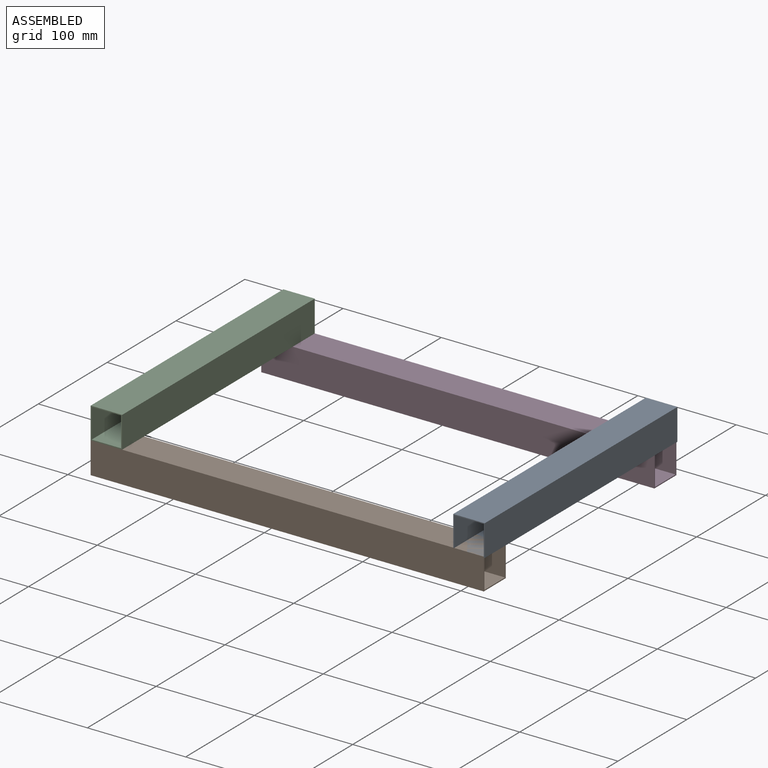
[diagram: assembled view]
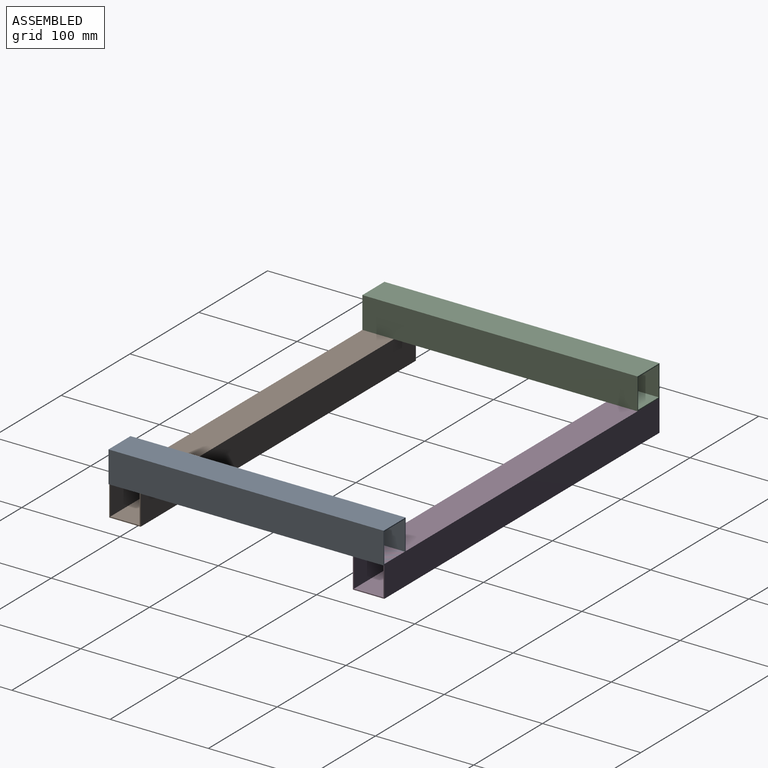
[diagram: assembled view, second angle]
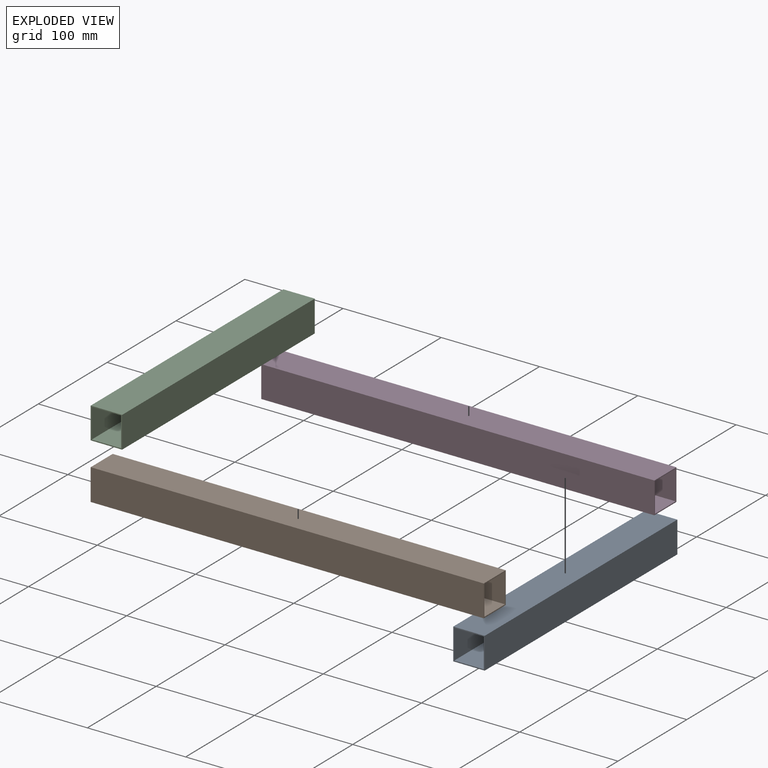
[diagram: exploded view]
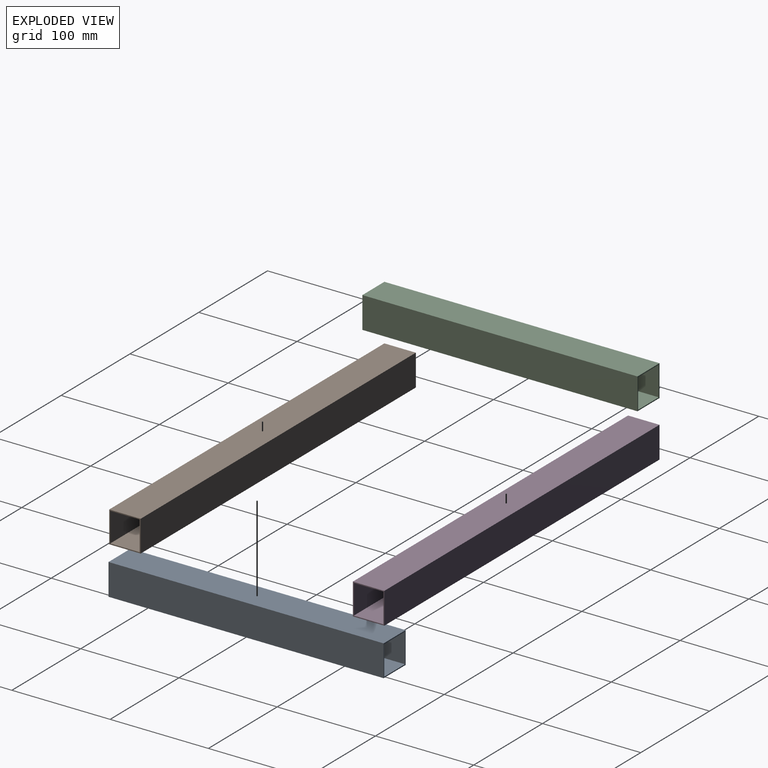
[diagram: exploded view, second angle]
ASSEMBLY  parts=4 mates=3
PART A: 10 faces, bbox 32x280x32 mm
  f0: plane 280x32mm, normal (0,0,1), area 8960mm2, adj f1,f7,f8,f9
  f1: plane 280x32mm, normal (-1,0,0), area 8960mm2, adj f0,f2,f8,f9
  f2: plane 280x32mm, normal (0,0,-1), area 8960mm2, adj f1,f7,f8,f9
  f3: plane 280x30mm, normal (1,0,0), area 8400mm2, adj f4,f6,f8,f9
  f4: plane 280x30mm, normal (0,0,-1), area 8400mm2, adj f3,f5,f8,f9
  f5: plane 280x30mm, normal (-1,0,0), area 8400mm2, adj f4,f6,f8,f9
  f6: plane 280x30mm, normal (0,0,1), area 8400mm2, adj f3,f5,f8,f9
  f7: plane 280x32mm, normal (1,0,0), area 8960mm2, adj f0,f2,f8,f9
  f8: plane 32x32mm, normal (0,-1,0), area 124mm2, adj f0,f1,f2,f3,f4,f5,f6,f7
  f9: plane 32x32mm, normal (0,1,0), area 124mm2, adj f0,f1,f2,f3,f4,f5,f6,f7
PART B: 10 faces, bbox 32x400x32 mm
  f0: plane 400x32mm, normal (0,0,1), area 12800mm2, adj f1,f7,f8,f9
  f1: plane 400x32mm, normal (-1,0,0), area 12800mm2, adj f0,f2,f8,f9
  f2: plane 400x32mm, normal (0,0,-1), area 12800mm2, adj f1,f7,f8,f9
  f3: plane 400x30mm, normal (1,0,0), area 12000mm2, adj f4,f6,f8,f9
  f4: plane 400x30mm, normal (0,0,-1), area 12000mm2, adj f3,f5,f8,f9
  f5: plane 400x30mm, normal (-1,0,0), area 12000mm2, adj f4,f6,f8,f9
  f6: plane 400x30mm, normal (0,0,1), area 12000mm2, adj f3,f5,f8,f9
  f7: plane 400x32mm, normal (1,0,0), area 12800mm2, adj f0,f2,f8,f9
  f8: plane 32x32mm, normal (0,-1,0), area 124mm2, adj f0,f1,f2,f3,f4,f5,f6,f7
  f9: plane 32x32mm, normal (0,1,0), area 124mm2, adj f0,f1,f2,f3,f4,f5,f6,f7
PART C: same geometry as A
PART D: same geometry as B
PLACE A t=(199.76,49.37,-19.39)mm
PLACE B rot(axis=(0,0,1),90deg) t=(-185.24,-214.63,-50.39)mm
PLACE C t=(-169.24,49.37,-18.39)mm
PLACE D rot(axis=(0,0,1),90deg) t=(-185.24,33.37,-50.39)mm
MATE fastened C.f2 <-> D.f0  axis (0,0,1) through (-185.24,49.37,-34.39)mm
MATE fastened C.f2 <-> B.f0  axis (0,0,-1) through (-185.24,-230.63,-34.39)mm
MATE fastened A.f6 <-> D.f0  axis (0,0,-1) through (214.76,49.37,-34.39)mm
